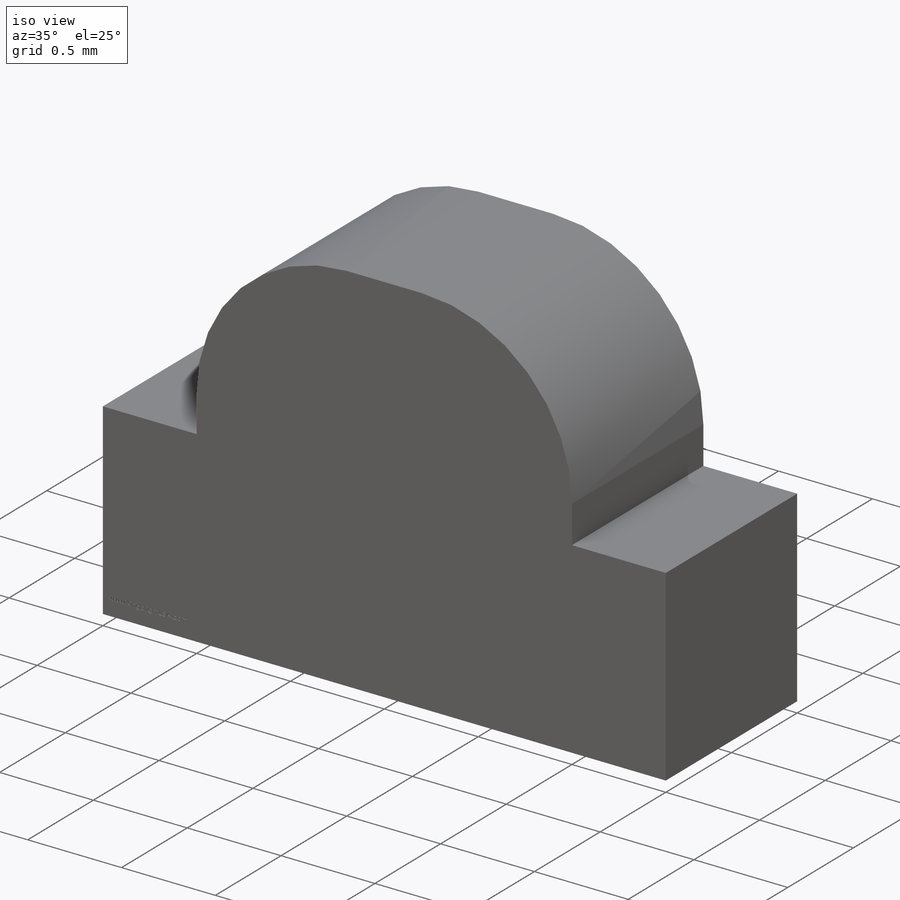
[diagram: iso view]
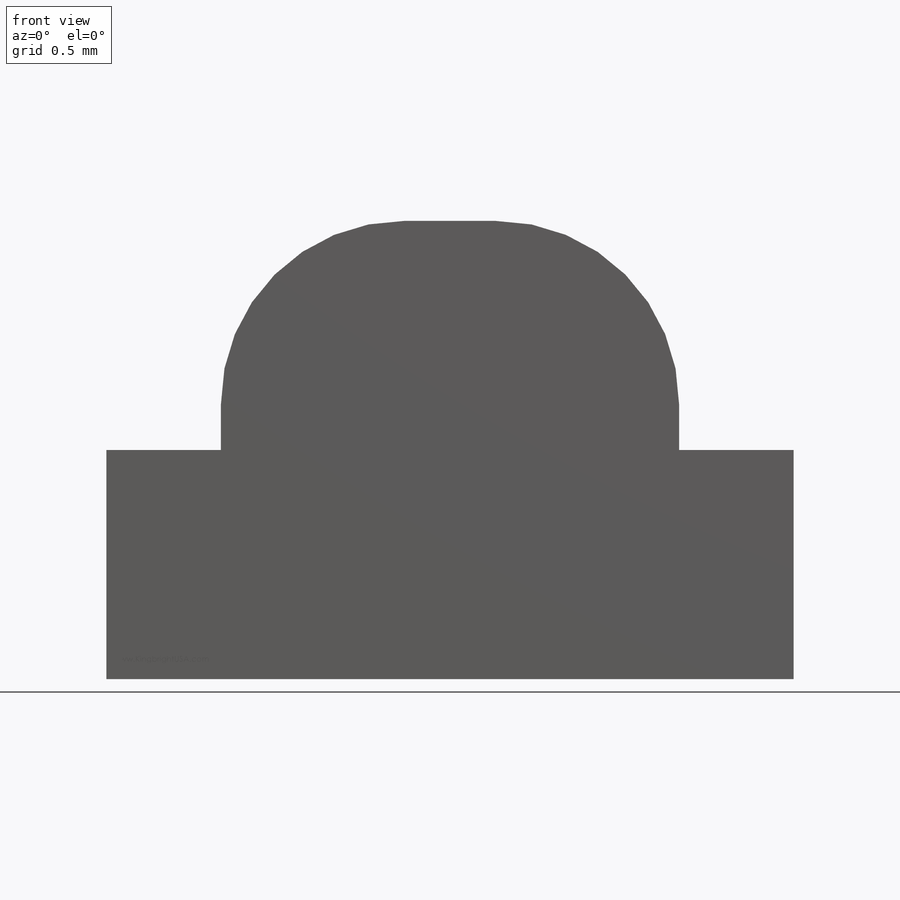
[diagram: front view]
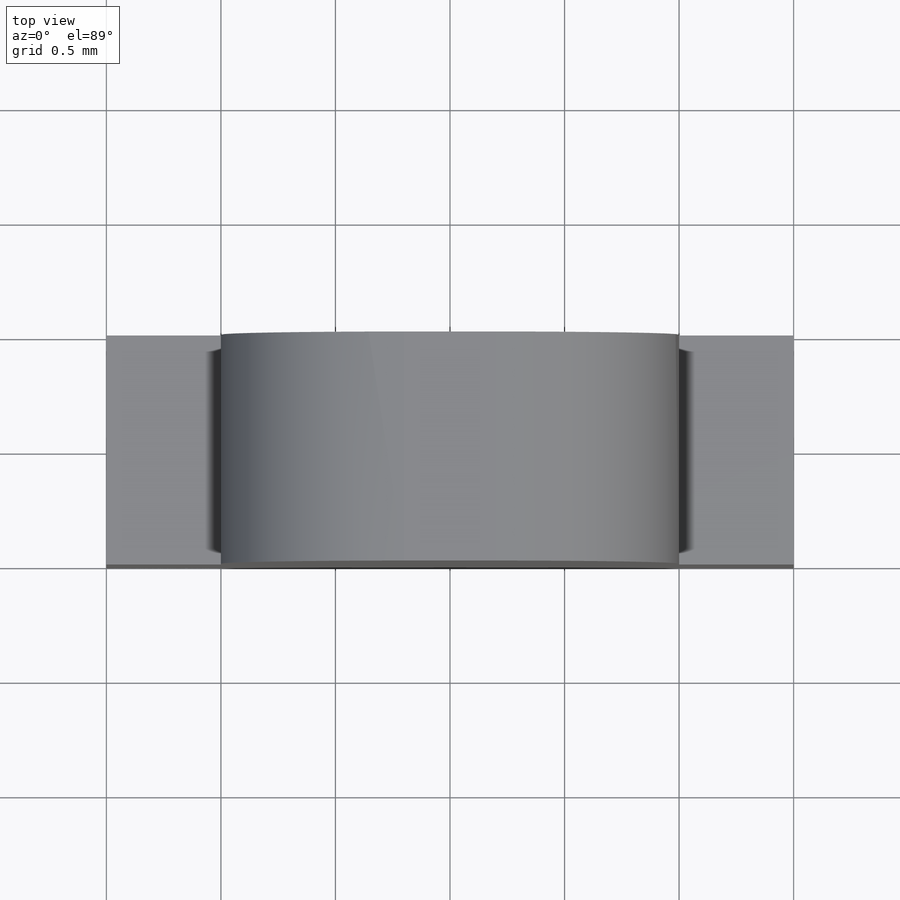
[diagram: top view]
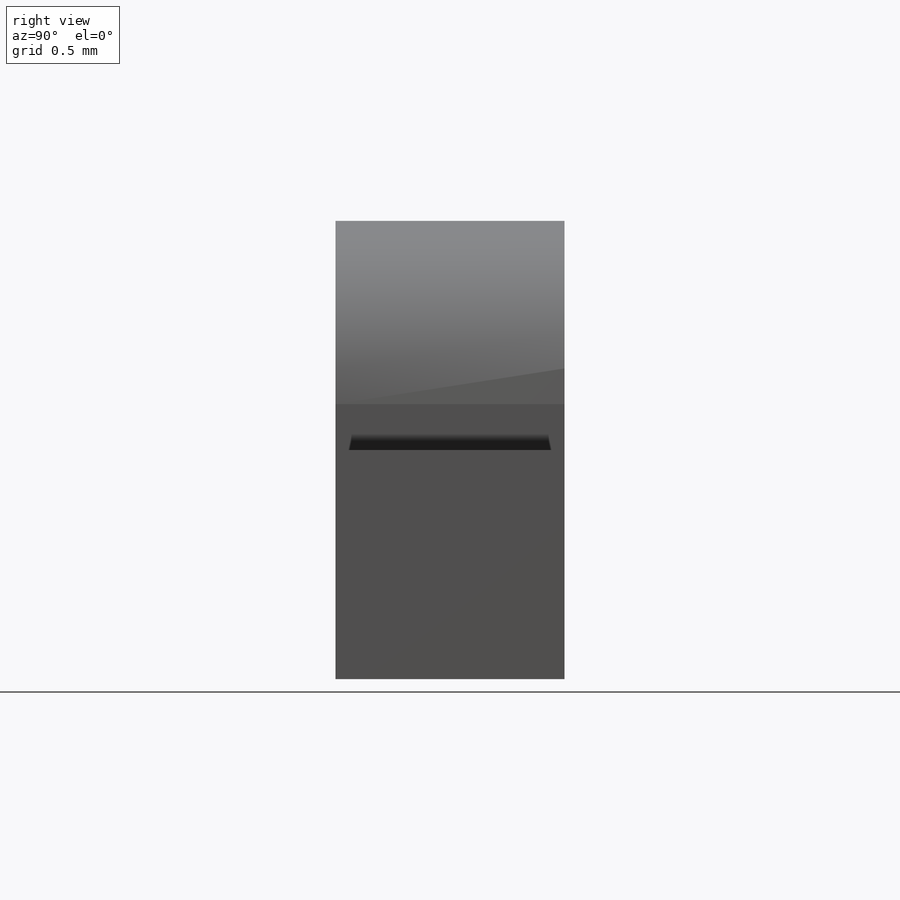
[diagram: right view]
SOLIDWORKS PART (.sldprt)
format: sldprt  version: not decoded by parser v0  size: 610,816 bytes
history: native  units: mm
features: sketch x8, extrude x7, material x1, cut_extrude x1 (+13 scaffold rows collapsed)
feature tree (30):
  scaffold x13  (default folders/planes/origin — collapsed)
  material  "Material <not specified>"
  sketch  "Sketch1"  dims[c1.D4=0.8mm c1.D1=1.0mm c1.D2=3.0mm c1.D3=1.0mm c2.D4=0.35mm c2.D5=2.0mm c2.D6=0.03mm c2.D7=0.03mm c2.D8=0.03mm c2.D9=0.3mm c2.D10=0.25mm]
  extrude  "Extrude1"  Depth=1mm
  extrude  "Extrude2"  [1 undecoded]
  sketch  "Sketch1<5>"  dims[D1=0.1mm]
  extrude  "Extrude3"  [1 undecoded]
  sketch  "Sketch1<6>"  dims[D1=1.0mm]
  sketch  "Sketch5"  dims[D1=0.1mm D2=0.1mm]
  extrude  "Extrude4"  Depth=0.02mm
  extrude  "Extrude5"  [1 undecoded]
  sketch  "Sketch5<3>"  dims[D1=0.02mm]
  extrude  "Extrude6"  [1 undecoded]
  sketch  "Sketch1<7>"  dims[D1=1.0mm]
  sketch  "Sketch6"
  extrude  "Extrude7"  Depth=0.03mm
  sketch  "Sketch8"  dims[D1=0.5mm D2=0.075mm]
  cut_extrude  "Cut-Extrude1"  Depth=0.01mm
decode coverage: 11 of 16 modeling features carry decoded parameters
note: 4 parameter values undecoded
summary: no parameter record found for 4 features
note: suppression state not decoded; provenance and decode notes live in map.json
